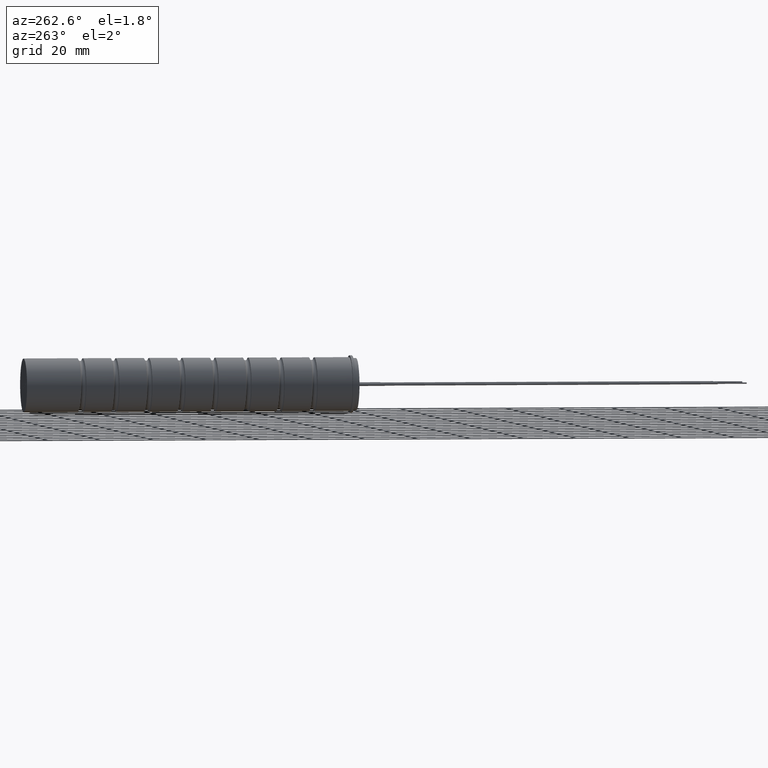
[diagram: clean part render]
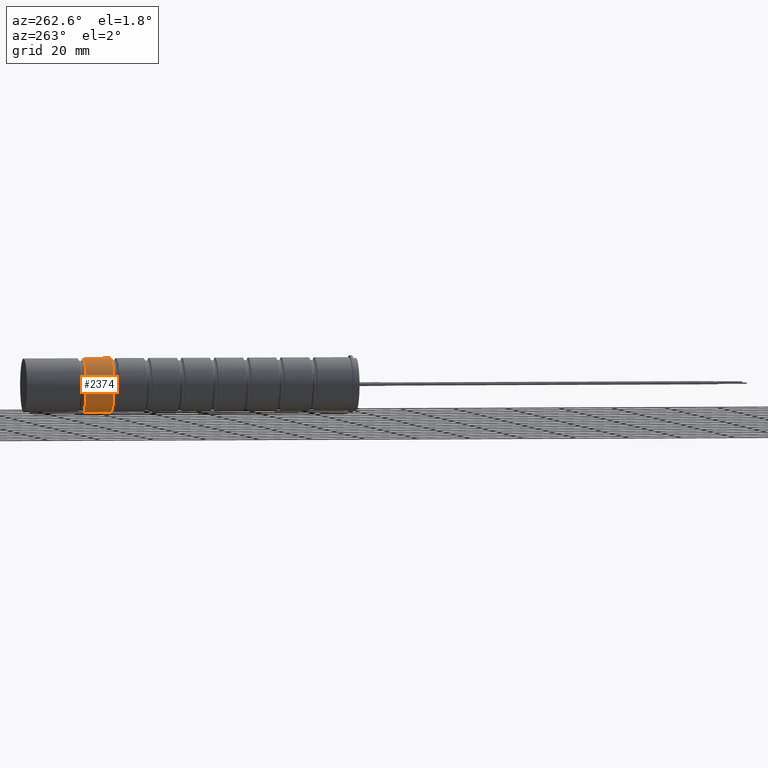
[diagram: same view with one face highlighted and labeled with its STEP entity id]
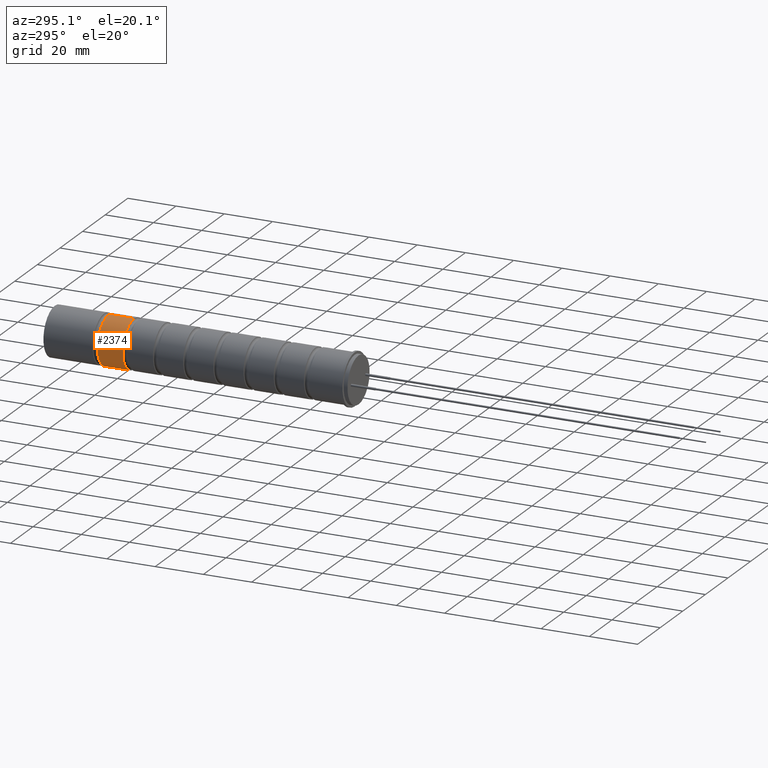
[diagram: same view with one face highlighted and labeled with its STEP entity id]
A machine part, auxiliary view. The second image highlights one B-rep face of the part: STEP entity #2374.
A second angle (auxiliary view) of the same face is appended — the face is thin or edge-on in the first view.
In plain terms, the highlighted cylindrical surface (edge-blend (fillet) strip) has radius 10.15 mm, axis along (-0, -1, -0).
Its self-contained STEP definition (entity closure, byte-faithful):
#78 = LINE ( 'NONE', #2900, #4739 ) ;
#107 = CARTESIAN_POINT ( 'NONE',  ( 0.0000000000000000000, 92.96676000000000800, -10.15000000000000000 ) ) ;
#151 = DIRECTION ( 'NONE',  ( 0.0000000000000000000, 0.0000000000000000000, 1.000000000000000000 ) ) ;
#324 = CARTESIAN_POINT ( 'NONE',  ( 1.243016501134563700E-015, 92.96676000000000800, 10.15000000000000000 ) ) ;
#532 = DIRECTION ( 'NONE',  ( 0.0000000000000000000, 1.000000000000000000, 0.0000000000000000000 ) ) ;
#622 = EDGE_CURVE ( 'NONE', #1909, #4322, #4432, .T. ) ;
#687 = ORIENTED_EDGE ( 'NONE', *, *, #1185, .F. ) ;
#709 = DIRECTION ( 'NONE',  ( -0.0000000000000000000, -1.000000000000000000, -0.0000000000000000000 ) ) ;
#880 = CARTESIAN_POINT ( 'NONE',  ( 1.243016501134563700E-015, 125.9000000000000100, 10.15000000000000000 ) ) ;
#1118 = EDGE_CURVE ( 'NONE', #4621, #2075, #3711, .T. ) ;
#1130 = ORIENTED_EDGE ( 'NONE', *, *, #3993, .T. ) ;
#1185 = EDGE_CURVE ( 'NONE', #2075, #1909, #1848, .T. ) ;
#1193 = AXIS2_PLACEMENT_3D ( 'NONE', #3893, #532, #151 ) ;
#1318 = CARTESIAN_POINT ( 'NONE',  ( 1.243016501134563700E-015, 103.4817100000000200, 10.15000000000000000 ) ) ;
#1511 = DIRECTION ( 'NONE',  ( 0.0000000000000000000, 0.0000000000000000000, -1.000000000000000000 ) ) ;
#1662 = ORIENTED_EDGE ( 'NONE', *, *, #1118, .F. ) ;
#1761 = CARTESIAN_POINT ( 'NONE',  ( 0.0000000000000000000, 103.4817100000000200, -10.15000000000000000 ) ) ;
#1848 = LINE ( 'NONE', #880, #3426 ) ;
#1909 = VERTEX_POINT ( 'NONE', #324 ) ;
#2023 = CYLINDRICAL_SURFACE ( 'NONE', #3483, 10.15000000000000000 ) ;
#2041 = DIRECTION ( 'NONE',  ( -0.0000000000000000000, -1.000000000000000000, -0.0000000000000000000 ) ) ;
#2075 = VERTEX_POINT ( 'NONE', #1318 ) ;
#2175 = DIRECTION ( 'NONE',  ( -0.0000000000000000000, -1.000000000000000000, -0.0000000000000000000 ) ) ;
#2374 = ADVANCED_FACE ( 'NONE', ( #2672 ), #2023, .T. ) ;
#2672 = FACE_OUTER_BOUND ( 'NONE', #3031, .T. ) ;
#2900 = CARTESIAN_POINT ( 'NONE',  ( 0.0000000000000000000, 125.9000000000000100, -10.15000000000000000 ) ) ;
#3031 = EDGE_LOOP ( 'NONE', ( #687, #1662, #1130, #3080 ) ) ;
#3080 = ORIENTED_EDGE ( 'NONE', *, *, #622, .F. ) ;
#3361 = CARTESIAN_POINT ( 'NONE',  ( 0.0000000000000000000, 92.96676000000000800, 0.0000000000000000000 ) ) ;
#3384 = CARTESIAN_POINT ( 'NONE',  ( 0.0000000000000000000, 125.9000000000000100, 0.0000000000000000000 ) ) ;
#3394 = AXIS2_PLACEMENT_3D ( 'NONE', #3361, #709, #4016 ) ;
#3426 = VECTOR ( 'NONE', #2041, 1000.000000000000000 ) ;
#3483 = AXIS2_PLACEMENT_3D ( 'NONE', #3384, #4868, #1511 ) ;
#3711 = CIRCLE ( 'NONE', #1193, 10.15000000000000000 ) ;
#3893 = CARTESIAN_POINT ( 'NONE',  ( 0.0000000000000000000, 103.4817100000000200, 0.0000000000000000000 ) ) ;
#3993 = EDGE_CURVE ( 'NONE', #4621, #4322, #78, .T. ) ;
#4016 = DIRECTION ( 'NONE',  ( 0.0000000000000000000, 0.0000000000000000000, -1.000000000000000000 ) ) ;
#4322 = VERTEX_POINT ( 'NONE', #107 ) ;
#4432 = CIRCLE ( 'NONE', #3394, 10.15000000000000000 ) ;
#4621 = VERTEX_POINT ( 'NONE', #1761 ) ;
#4739 = VECTOR ( 'NONE', #2175, 1000.000000000000000 ) ;
#4868 = DIRECTION ( 'NONE',  ( -0.0000000000000000000, -1.000000000000000000, -0.0000000000000000000 ) ) ;